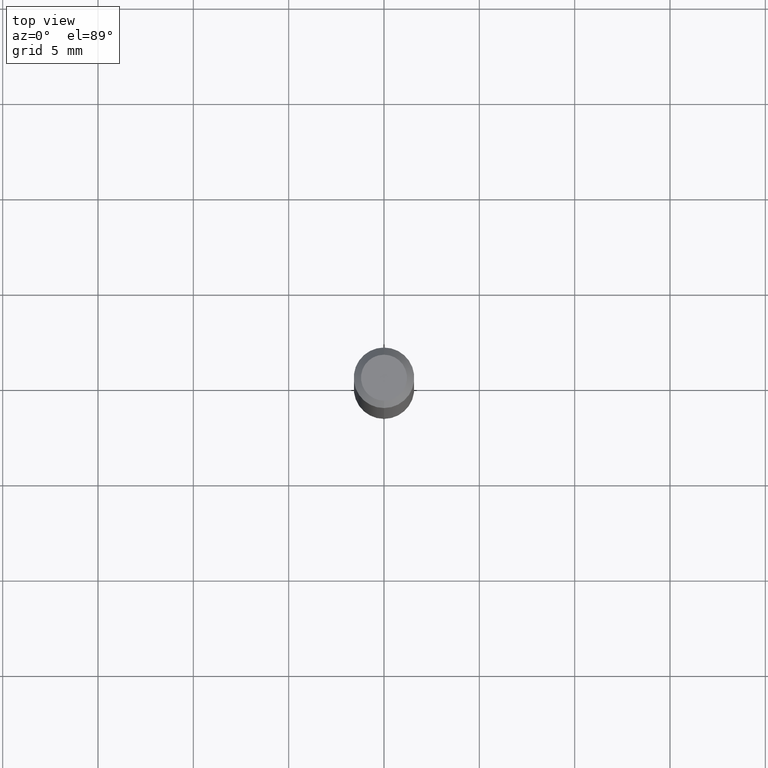
[diagram: clean part render]
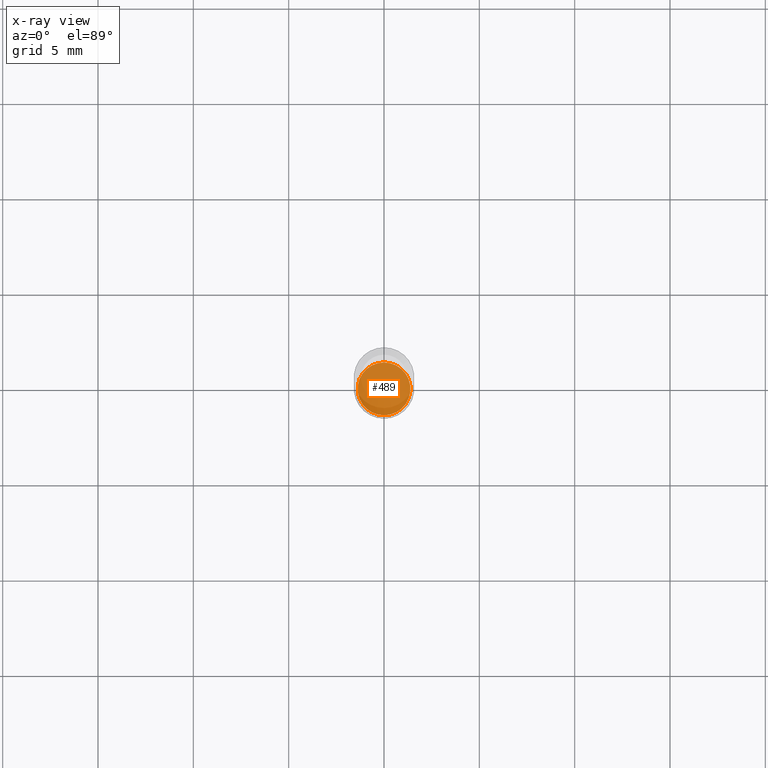
[diagram: x-ray — body ghosted, one internal face saturated and labeled with its STEP entity id]
A machine part, top view, then the same camera in x-ray: the body is ghosted and one INTERNAL B-rep face — a face not visible from any outside direction — is saturated and labeled: STEP entity #489.
In plain terms, the highlighted planar face has unit normal (-0, 0, 1).
Its self-contained STEP definition (entity closure, byte-faithful):
#15 = CARTESIAN_POINT ( 'NONE',  ( 3.264570477518358750E-29, -4.661314297130257366E-15, -1.335000000000000187 ) ) ;
#27 = ORIENTED_EDGE ( 'NONE', *, *, #309, .F. ) ;
#93 = CARTESIAN_POINT ( 'NONE',  ( 3.264570477518358750E-29, -4.661314297130257366E-15, -1.335000000000000187 ) ) ;
#108 = DIRECTION ( 'NONE',  ( -2.445371144208507908E-29, 3.491621196352252256E-15, 1.000000000000000000 ) ) ;
#122 = CARTESIAN_POINT ( 'NONE',  ( -3.805714659338688453E-16, -0.05450000000000466277, -1.334999999999999742 ) ) ;
#142 = FACE_OUTER_BOUND ( 'NONE', #175, .T. ) ;
#146 = CIRCLE ( 'NONE', #414, 0.05449999999999999983 ) ;
#175 = EDGE_LOOP ( 'NONE', ( #223, #27 ) ) ;
#209 = VERTEX_POINT ( 'NONE', #310 ) ;
#216 = DIRECTION ( 'NONE',  ( -6.982962677686265922E-15, -1.000000000000000000, 5.012565125989473962E-15 ) ) ;
#220 = CARTESIAN_POINT ( 'NONE',  ( 3.264570477518358750E-29, -4.661314297130257366E-15, -1.335000000000000187 ) ) ;
#223 = ORIENTED_EDGE ( 'NONE', *, *, #411, .F. ) ;
#247 = VERTEX_POINT ( 'NONE', #122 ) ;
#294 = CIRCLE ( 'NONE', #439, 0.05449999999999999983 ) ;
#300 = PLANE ( 'NONE',  #327 ) ;
#309 = EDGE_CURVE ( 'NONE', #209, #247, #146, .T. ) ;
#310 = CARTESIAN_POINT ( 'NONE',  ( 3.890221478286871955E-16, 0.05449999999999533690, -1.335000000000000409 ) ) ;
#327 = AXIS2_PLACEMENT_3D ( 'NONE', #15, #415, #492 ) ;
#362 = DIRECTION ( 'NONE',  ( -2.445371144208507908E-29, 3.491621196352252256E-15, 1.000000000000000000 ) ) ;
#411 = EDGE_CURVE ( 'NONE', #247, #209, #294, .T. ) ;
#414 = AXIS2_PLACEMENT_3D ( 'NONE', #93, #362, #449 ) ;
#415 = DIRECTION ( 'NONE',  ( -2.445371144208507908E-29, 3.491621196352251862E-15, 1.000000000000000000 ) ) ;
#439 = AXIS2_PLACEMENT_3D ( 'NONE', #220, #108, #216 ) ;
#449 = DIRECTION ( 'NONE',  ( -6.982962677686265922E-15, -1.000000000000000000, 5.012565125989473962E-15 ) ) ;
#489 = ADVANCED_FACE ( 'NONE', ( #142 ), #300, .F. ) ;
#492 = DIRECTION ( 'NONE',  ( -6.982962677686265922E-15, -1.000000000000000000, 3.491621196352251862E-15 ) ) ;